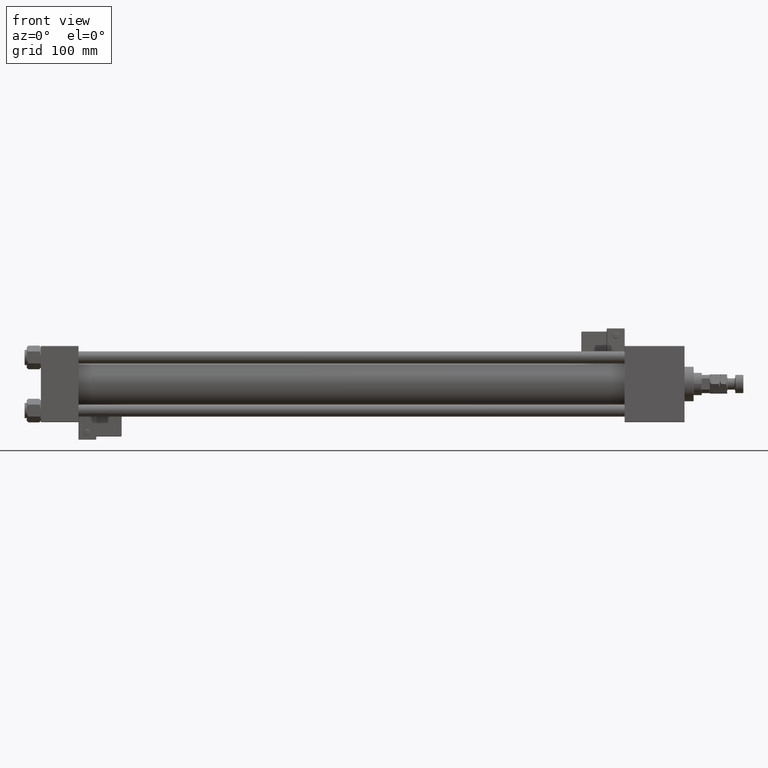
[diagram: clean part render]
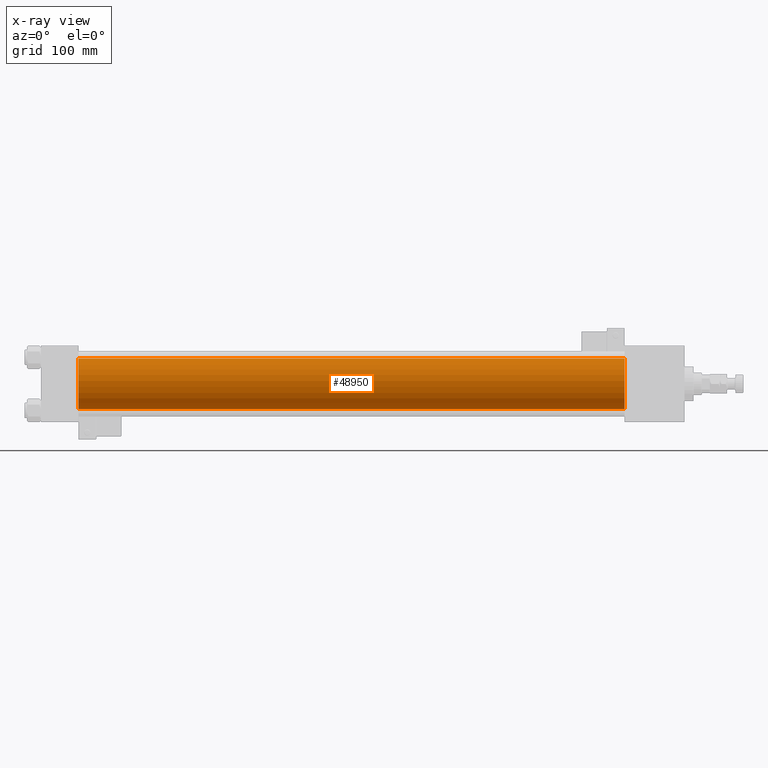
[diagram: x-ray — body ghosted, one internal face saturated and labeled with its STEP entity id]
A machine part, front view, then the same camera in x-ray: the body is ghosted and one INTERNAL B-rep face — a face not visible from any outside direction — is saturated and labeled: STEP entity #48950.
In plain terms, the highlighted cylindrical surface (edge-blend (fillet) strip) has radius 25 mm, axis along (-1, -0, -0).
Its self-contained STEP definition (entity closure, byte-faithful):
#1244 = VERTEX_POINT ( 'NONE', #7123 ) ;
#1517 = ORIENTED_EDGE ( 'NONE', *, *, #15668, .F. ) ;
#4995 = DIRECTION ( 'NONE',  ( 1.000000000000000000, 0.000000000000000000, 0.000000000000000000 ) ) ;
#6586 = VERTEX_POINT ( 'NONE', #22308 ) ;
#7123 = CARTESIAN_POINT ( 'NONE',  ( 37.00000000000000000, -2.602085213965210642E-15, 25.00000000000000000 ) ) ;
#9062 = EDGE_CURVE ( 'NONE', #14684, #1244, #15499, .T. ) ;
#9584 = DIRECTION ( 'NONE',  ( -1.000000000000000000, -0.000000000000000000, -0.000000000000000000 ) ) ;
#9913 = EDGE_CURVE ( 'NONE', #6586, #33210, #43421, .T. ) ;
#10251 = CARTESIAN_POINT ( 'NONE',  ( 575.0000000000001137, 4.595317839031724996E-16, -25.00000000000000000 ) ) ;
#10931 = CIRCLE ( 'NONE', #30178, 25.00000000000000000 ) ;
#11650 = ORIENTED_EDGE ( 'NONE', *, *, #9913, .T. ) ;
#13056 = ORIENTED_EDGE ( 'NONE', *, *, #9062, .F. ) ;
#14684 = VERTEX_POINT ( 'NONE', #34074 ) ;
#15499 = LINE ( 'NONE', #28373, #43101 ) ;
#15668 = EDGE_CURVE ( 'NONE', #1244, #33210, #10931, .T. ) ;
#16126 = ORIENTED_EDGE ( 'NONE', *, *, #40724, .T. ) ;
#18062 = DIRECTION ( 'NONE',  ( 0.000000000000000000, 0.000000000000000000, 1.000000000000000000 ) ) ;
#18172 = CARTESIAN_POINT ( 'NONE',  ( 37.00000000000000000, -2.602085213965210642E-15, 0.000000000000000000 ) ) ;
#18244 = AXIS2_PLACEMENT_3D ( 'NONE', #34250, #9584, #18062 ) ;
#22098 = VECTOR ( 'NONE', #31073, 1000.000000000000000 ) ;
#22190 = CYLINDRICAL_SURFACE ( 'NONE', #18244, 25.00000000000000000 ) ;
#22308 = CARTESIAN_POINT ( 'NONE',  ( 575.0000000000001137, 4.595317839031724996E-16, -25.00000000000000000 ) ) ;
#28373 = CARTESIAN_POINT ( 'NONE',  ( 575.0000000000001137, -2.602085213965210642E-15, 25.00000000000000000 ) ) ;
#29676 = CIRCLE ( 'NONE', #49774, 25.00000000000000000 ) ;
#30178 = AXIS2_PLACEMENT_3D ( 'NONE', #18172, #43126, #35435 ) ;
#31073 = DIRECTION ( 'NONE',  ( -1.000000000000000000, -0.000000000000000000, -0.000000000000000000 ) ) ;
#33210 = VERTEX_POINT ( 'NONE', #36313 ) ;
#34074 = CARTESIAN_POINT ( 'NONE',  ( 575.0000000000001137, -2.602085213965210642E-15, 25.00000000000000000 ) ) ;
#34250 = CARTESIAN_POINT ( 'NONE',  ( 575.0000000000001137, -2.602085213965210642E-15, 0.000000000000000000 ) ) ;
#35435 = DIRECTION ( 'NONE',  ( 0.000000000000000000, 0.000000000000000000, -1.000000000000000000 ) ) ;
#36313 = CARTESIAN_POINT ( 'NONE',  ( 37.00000000000000000, 4.595317839031724996E-16, -25.00000000000000000 ) ) ;
#37850 = EDGE_LOOP ( 'NONE', ( #16126, #11650, #1517, #13056 ) ) ;
#37902 = DIRECTION ( 'NONE',  ( 0.000000000000000000, 0.000000000000000000, -1.000000000000000000 ) ) ;
#40724 = EDGE_CURVE ( 'NONE', #14684, #6586, #29676, .T. ) ;
#42554 = CARTESIAN_POINT ( 'NONE',  ( 575.0000000000001137, -2.602085213965210642E-15, 0.000000000000000000 ) ) ;
#43101 = VECTOR ( 'NONE', #45343, 1000.000000000000000 ) ;
#43126 = DIRECTION ( 'NONE',  ( 1.000000000000000000, 0.000000000000000000, 0.000000000000000000 ) ) ;
#43421 = LINE ( 'NONE', #10251, #22098 ) ;
#45343 = DIRECTION ( 'NONE',  ( -1.000000000000000000, -0.000000000000000000, -0.000000000000000000 ) ) ;
#47109 = FACE_OUTER_BOUND ( 'NONE', #37850, .T. ) ;
#48950 = ADVANCED_FACE ( 'NONE', ( #47109 ), #22190, .F. ) ;
#49774 = AXIS2_PLACEMENT_3D ( 'NONE', #42554, #4995, #37902 ) ;